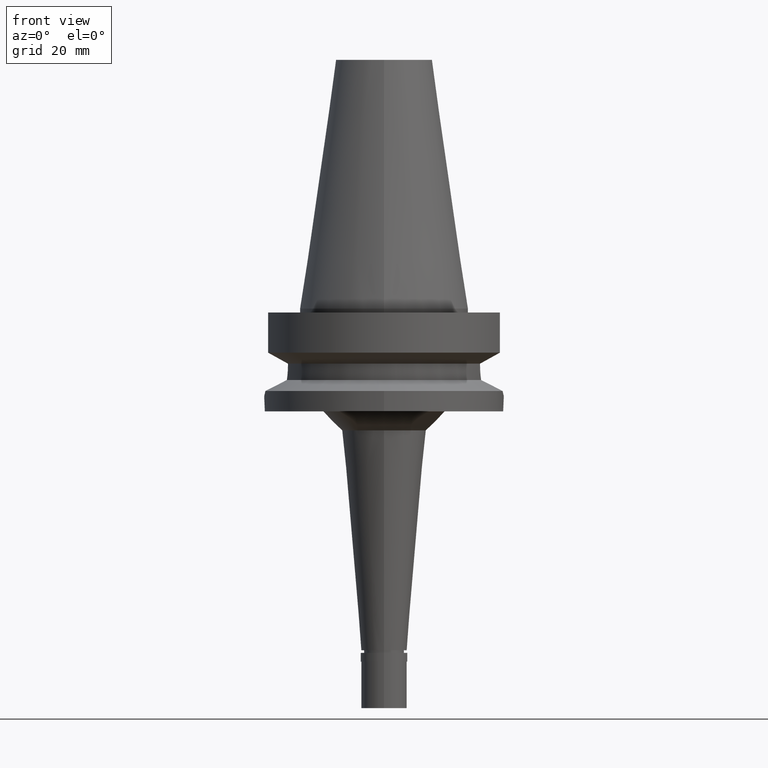
[diagram: clean part render]
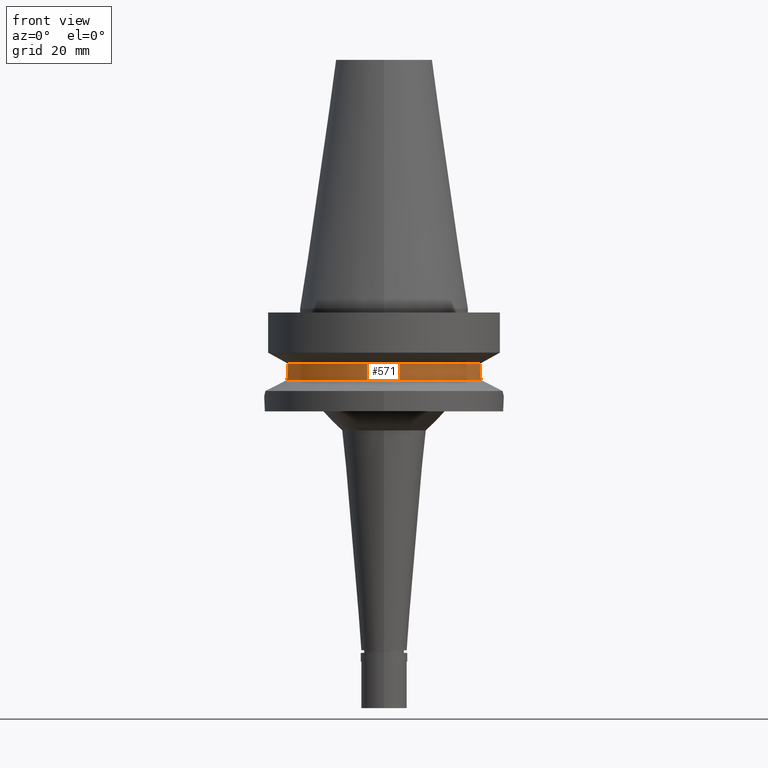
[diagram: same view with one face highlighted and labeled with its STEP entity id]
A machine part, front view. The second image highlights one B-rep face of the part: STEP entity #571.
In plain terms, the highlighted cylindrical surface (partial cylindrical patch) has radius 26.5 mm, axis along (0, 0, -1).
Its self-contained STEP definition (entity closure, byte-faithful):
#27 = CARTESIAN_POINT ( 'NONE',  ( 0.0000000000000000000, 0.0000000000000000000, -18.74774300138999905 ) ) ;
#29 = EDGE_CURVE ( 'NONE', #2634, #2209, #2467, .T. ) ;
#60 = VERTEX_POINT ( 'NONE', #1430 ) ;
#89 = CARTESIAN_POINT ( 'NONE',  ( 25.24772266958000344, -8.050000000000000711, -14.94999999999999929 ) ) ;
#92 = ORIENTED_EDGE ( 'NONE', *, *, #29, .T. ) ;
#103 = CARTESIAN_POINT ( 'NONE',  ( -25.32844777903596167, -7.792527725354480239, -16.96974754110710037 ) ) ;
#126 = LINE ( 'NONE', #1913, #2917 ) ;
#212 = CARTESIAN_POINT ( 'NONE',  ( -25.35412323722924555, -7.708830947934377953, -17.27007949472249138 ) ) ;
#254 = CARTESIAN_POINT ( 'NONE',  ( 25.53175183775000079, -7.097862220092999941, -18.74774300138999905 ) ) ;
#270 = VERTEX_POINT ( 'NONE', #2299 ) ;
#297 = CARTESIAN_POINT ( 'NONE',  ( 25.36814761471840285, -7.663830712951458679, -17.48803584499038166 ) ) ;
#311 = CARTESIAN_POINT ( 'NONE',  ( 25.31648647172269051, -7.831300037041386553, -16.81378020971980902 ) ) ;
#337 = CIRCLE ( 'NONE', #1683, 26.49999999999998224 ) ;
#353 = CARTESIAN_POINT ( 'NONE',  ( -25.27269391207093463, -7.973288729734981040, -16.24537813256335284 ) ) ;
#460 = DIRECTION ( 'NONE',  ( -0.9634623335000935818, -0.2678438573619981722, 0.0000000000000000000 ) ) ;
#464 = EDGE_LOOP ( 'NONE', ( #1097, #2286, #2391, #1400, #92, #588 ) ) ;
#486 = CARTESIAN_POINT ( 'NONE',  ( -25.24772413156000184, -8.049995414696001106, -14.45229203631999937 ) ) ;
#523 = CARTESIAN_POINT ( 'NONE',  ( 25.29452398121202350, -7.902090651788173936, -16.48828405105369654 ) ) ;
#546 = FACE_OUTER_BOUND ( 'NONE', #464, .T. ) ;
#562 = CARTESIAN_POINT ( 'NONE',  ( -25.44392837589771972, -7.408239565064243415, -18.11709494171709878 ) ) ;
#571 = ADVANCED_FACE ( 'NONE', ( #546 ), #1419, .T. ) ;
#588 = ORIENTED_EDGE ( 'NONE', *, *, #2474, .F. ) ;
#740 = CARTESIAN_POINT ( 'NONE',  ( 25.25396284446427586, -8.030907492771135026, -15.59360398737620557 ) ) ;
#789 = CARTESIAN_POINT ( 'NONE',  ( -25.24772266957999989, -8.049999999999984723, -15.58999736272119030 ) ) ;
#1000 = EDGE_CURVE ( 'NONE', #2960, #1781, #337, .T. ) ;
#1009 = CARTESIAN_POINT ( 'NONE',  ( -25.24772266958000344, -8.050000000000000711, -14.94999999999999929 ) ) ;
#1011 = CARTESIAN_POINT ( 'NONE',  ( 25.31202572170775866, -7.845729406577843790, -16.75279821058729013 ) ) ;
#1097 = ORIENTED_EDGE ( 'NONE', *, *, #2298, .F. ) ;
#1110 = LINE ( 'NONE', #1562, #2599 ) ;
#1164 = CARTESIAN_POINT ( 'NONE',  ( 0.0000000000000000000, 1.065333950388000029E-14, -14.45225699861000024 ) ) ;
#1202 = CARTESIAN_POINT ( 'NONE',  ( 25.43786330457131584, -7.435589081402770084, -18.11654212004048148 ) ) ;
#1337 = DIRECTION ( 'NONE',  ( -2.937426081723138375E-06, 9.212840442250435532E-06, 0.9999999999532475092 ) ) ;
#1400 = ORIENTED_EDGE ( 'NONE', *, *, #2826, .F. ) ;
#1419 = CYLINDRICAL_SURFACE ( 'NONE', #1433, 26.50000000000000000 ) ;
#1430 = CARTESIAN_POINT ( 'NONE',  ( 25.24772266958000344, -8.050000000000000711, -14.94999999999999929 ) ) ;
#1433 = AXIS2_PLACEMENT_3D ( 'NONE', #2376, #1904, #1748 ) ;
#1487 = CARTESIAN_POINT ( 'NONE',  ( -25.33293017119196122, -7.777974374872430374, -17.02562462713450486 ) ) ;
#1523 = EDGE_CURVE ( 'NONE', #60, #1781, #1674, .T. ) ;
#1542 = CARTESIAN_POINT ( 'NONE',  ( -25.48482038766499969, -7.266679548437280367, -18.43222872448169269 ) ) ;
#1562 = CARTESIAN_POINT ( 'NONE',  ( -25.24772266958000344, -8.050000000000000711, -14.94999999999999929 ) ) ;
#1622 = AXIS2_PLACEMENT_3D ( 'NONE', #1164, #2384, #1914 ) ;
#1630 = CARTESIAN_POINT ( 'NONE',  ( 25.24772266958000344, -8.050000000000000711, -14.45225699861000024 ) ) ;
#1651 = CARTESIAN_POINT ( 'NONE',  ( -25.39164951572342588, -7.584807667340694337, -17.65197957158412834 ) ) ;
#1652 = CARTESIAN_POINT ( 'NONE',  ( 25.31950905643225269, -7.821515286679209034, -16.85442525727607332 ) ) ;
#1669 = CARTESIAN_POINT ( 'NONE',  ( 25.53175183775000079, -7.097862220092999941, -18.74774300138999905 ) ) ;
#1674 = B_SPLINE_CURVE_WITH_KNOTS ( 'NONE', 3,
 ( #89, #2649, #740, #1698, #2429, #523, #2190, #1011, #311, #1652, #2375, #297, #1202, #1669 ),
 .UNSPECIFIED., .F., .F.,
 ( 4, 2, 2, 1, 1, 2, 2, 4 ),
 ( 0.0000000000000000000, 0.2499999999999729106, 0.3749999999999600320, 0.4374999999999522049, 0.4687499999999483746, 0.4843749999999478195, 0.4999999999999473754, 1.000000000000000000 ),
 .UNSPECIFIED. ) ;
#1683 = AXIS2_PLACEMENT_3D ( 'NONE', #27, #2586, #460 ) ;
#1698 = CARTESIAN_POINT ( 'NONE',  ( 25.27268336911707891, -7.971811480177046327, -16.08115959838609399 ) ) ;
#1748 = DIRECTION ( 'NONE',  ( 0.0000000000000000000, -1.000000000000000000, 0.0000000000000000000 ) ) ;
#1781 = VERTEX_POINT ( 'NONE', #254 ) ;
#1785 = CARTESIAN_POINT ( 'NONE',  ( -25.53175183775000079, -7.097862220092999941, -18.74774300138999905 ) ) ;
#1904 = DIRECTION ( 'NONE',  ( 0.0000000000000000000, 0.0000000000000000000, -1.000000000000000000 ) ) ;
#1913 = CARTESIAN_POINT ( 'NONE',  ( 25.24772216408000247, -8.050001585437000173, -14.45224488446999977 ) ) ;
#1914 = DIRECTION ( 'NONE',  ( 0.9527442516822307583, -0.3037735849057093818, 0.0000000000000000000 ) ) ;
#1916 = CARTESIAN_POINT ( 'NONE',  ( -25.34388450889710143, -7.742333382929722951, -17.15666984719476318 ) ) ;
#2060 = CARTESIAN_POINT ( 'NONE',  ( -25.53175183775000079, -7.097862220092999941, -18.74774300138999905 ) ) ;
#2125 = B_SPLINE_CURVE_WITH_KNOTS ( 'NONE', 3,
 ( #2060, #1542, #562, #1651, #2765, #212, #1916, #1487, #103, #2210, #2438, #353, #789, #1009 ),
 .UNSPECIFIED., .F., .F.,
 ( 4, 2, 2, 1, 1, 2, 2, 4 ),
 ( 0.0000000000000000000, 0.2499999999999874545, 0.3749999999999825140, 0.4374999999999785727, 0.4687499999999779621, 0.4843749999999790168, 0.4999999999999800160, 1.000000000000000000 ),
 .UNSPECIFIED. ) ;
#2190 = CARTESIAN_POINT ( 'NONE',  ( 25.30212919435223640, -7.877667573966355086, -16.61042047325791771 ) ) ;
#2209 = VERTEX_POINT ( 'NONE', #486 ) ;
#2210 = CARTESIAN_POINT ( 'NONE',  ( -25.32550670071048771, -7.802071535306486894, -16.93256103012915048 ) ) ;
#2286 = ORIENTED_EDGE ( 'NONE', *, *, #1000, .T. ) ;
#2298 = EDGE_CURVE ( 'NONE', #2960, #270, #2125, .T. ) ;
#2299 = CARTESIAN_POINT ( 'NONE',  ( -25.24772266958000344, -8.050000000000000711, -14.94999999999999929 ) ) ;
#2375 = CARTESIAN_POINT ( 'NONE',  ( 25.32118155423727046, -7.816096717213359746, -16.87652453452194123 ) ) ;
#2376 = CARTESIAN_POINT ( 'NONE',  ( 0.0000000000000000000, 2.127456419478999887E-14, 73.71999999999999886 ) ) ;
#2384 = DIRECTION ( 'NONE',  ( 0.0000000000000000000, 0.0000000000000000000, -1.000000000000000000 ) ) ;
#2391 = ORIENTED_EDGE ( 'NONE', *, *, #1523, .F. ) ;
#2429 = CARTESIAN_POINT ( 'NONE',  ( 25.28048358772242210, -7.947040743789336226, -16.24400980667427064 ) ) ;
#2433 = DIRECTION ( 'NONE',  ( 1.015562734824009520E-06, 3.185175275491033685E-06, -0.9999999999944115814 ) ) ;
#2438 = CARTESIAN_POINT ( 'NONE',  ( -25.32419709970849553, -7.806318959900040433, -16.91578803901792227 ) ) ;
#2467 = CIRCLE ( 'NONE', #1622, 26.50000000000000711 ) ;
#2474 = EDGE_CURVE ( 'NONE', #270, #2209, #1110, .T. ) ;
#2586 = DIRECTION ( 'NONE',  ( 0.0000000000000000000, 0.0000000000000000000, 1.000000000000000000 ) ) ;
#2599 = VECTOR ( 'NONE', #1337, 1000.000000000000114 ) ;
#2634 = VERTEX_POINT ( 'NONE', #1630 ) ;
#2649 = CARTESIAN_POINT ( 'NONE',  ( 25.24772266957999989, -8.050000000000000711, -15.26991324111208037 ) ) ;
#2765 = CARTESIAN_POINT ( 'NONE',  ( -25.37573308857809096, -7.637710303742681006, -17.49818662949834192 ) ) ;
#2826 = EDGE_CURVE ( 'NONE', #2634, #60, #126, .T. ) ;
#2917 = VECTOR ( 'NONE', #2433, 1000.000000000000227 ) ;
#2960 = VERTEX_POINT ( 'NONE', #1785 ) ;